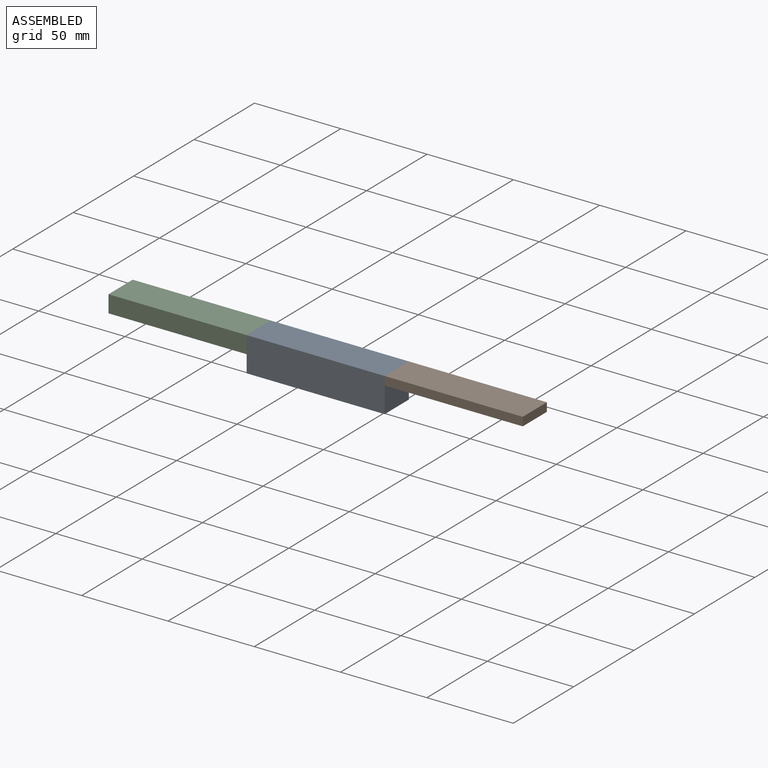
[diagram: assembled view]
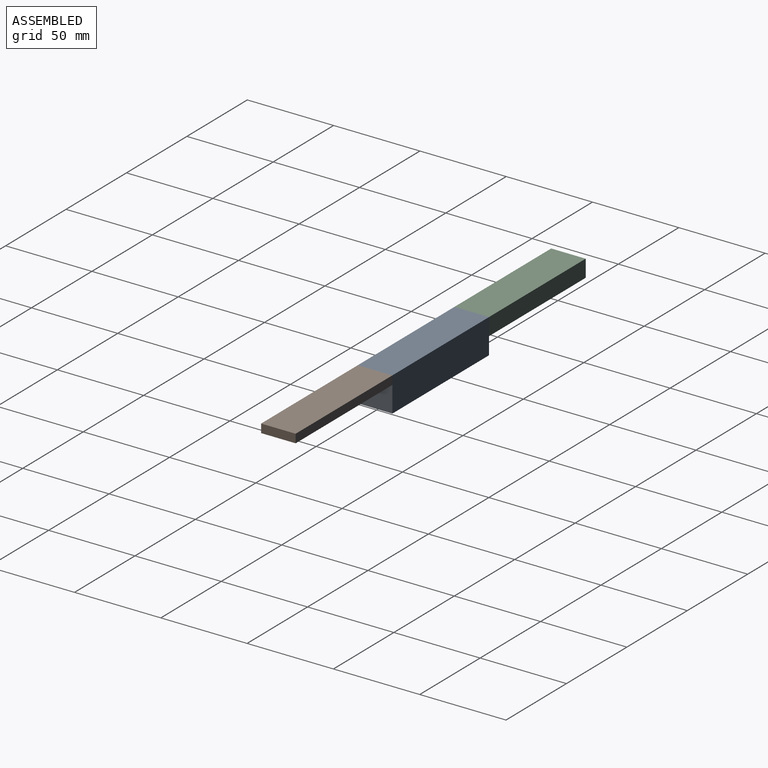
[diagram: assembled view, second angle]
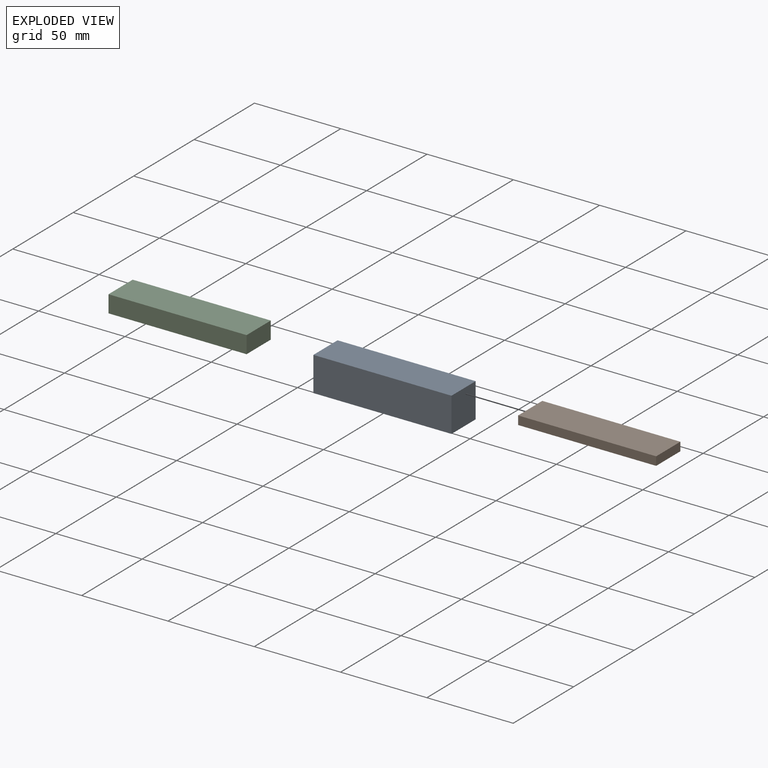
[diagram: exploded view]
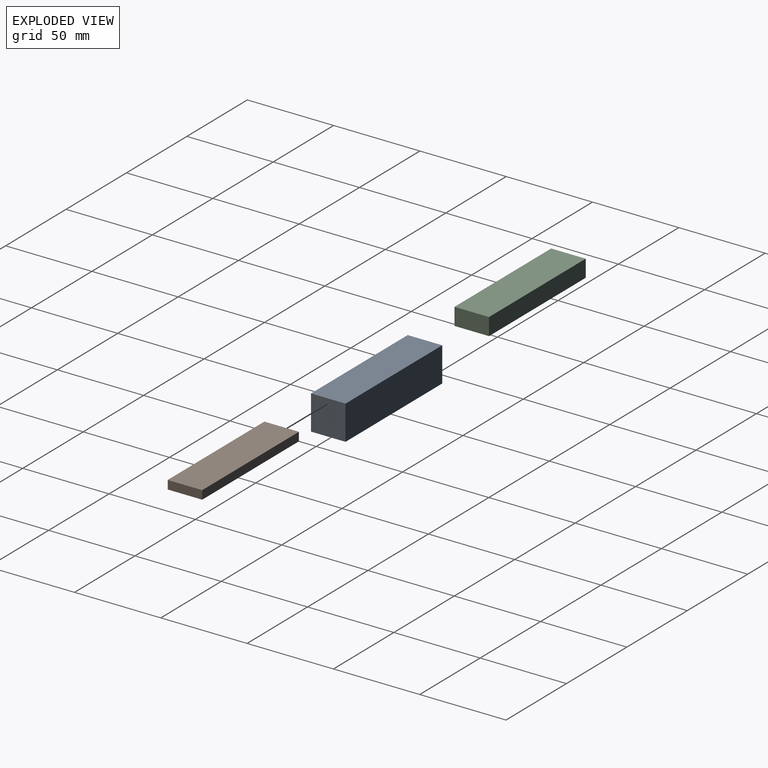
[diagram: exploded view, second angle]
ASSEMBLY  parts=3 mates=6
PART A: 6 faces, bbox 80x20x20 mm
  f0: plane 20x20mm, normal (-1,0,0), area 400mm2, adj f1,f3,f4,f5
  f1: plane 80x20mm, normal (0,-1,0), area 1600mm2, adj f0,f2,f4,f5
  f2: plane 20x20mm, normal (1,0,0), area 400mm2, adj f1,f3,f4,f5
  f3: plane 80x20mm, normal (0,1,0), area 1600mm2, adj f0,f2,f4,f5
  f4: plane 80x20mm, normal (0,0,1), area 1600mm2, adj f0,f1,f2,f3
  f5: plane 80x20mm, normal (0,0,-1), area 1600mm2, adj f0,f1,f2,f3
PART B: 6 faces, bbox 80x20x5 mm
  f0: plane 20x5mm, normal (-1,0,0), area 100mm2, adj f1,f3,f4,f5
  f1: plane 80x5mm, normal (0,-1,0), area 400mm2, adj f0,f2,f4,f5
  f2: plane 20x5mm, normal (1,0,0), area 100mm2, adj f1,f3,f4,f5
  f3: plane 80x5mm, normal (0,1,0), area 400mm2, adj f0,f2,f4,f5
  f4: plane 80x20mm, normal (0,0,1), area 1600mm2, adj f0,f1,f2,f3
  f5: plane 80x20mm, normal (0,0,-1), area 1600mm2, adj f0,f1,f2,f3
PART C: 6 faces, bbox 80x20x10 mm
  f0: plane 20x10mm, normal (-1,0,0), area 200mm2, adj f1,f3,f4,f5
  f1: plane 80x10mm, normal (0,-1,0), area 800mm2, adj f0,f2,f4,f5
  f2: plane 20x10mm, normal (1,0,0), area 200mm2, adj f1,f3,f4,f5
  f3: plane 80x10mm, normal (0,1,0), area 800mm2, adj f0,f2,f4,f5
  f4: plane 80x20mm, normal (0,0,1), area 1600mm2, adj f0,f1,f2,f3
  f5: plane 80x20mm, normal (0,0,-1), area 1600mm2, adj f0,f1,f2,f3
PLACE A t=(-88.06,15.24,-9.18)mm
PLACE B t=(-4.03,4.05,5.82)mm fixed
PLACE C t=(-166.54,16.45,0.82)mm
MATE planar A.f2 <-> B.f0  axis (1,0,0) through (-44.54,2.92,10.82)mm
MATE planar C.f2 <-> A.f0  axis (1,0,0) through (-124.54,2.92,5.82)mm
MATE planar C.f4 <-> A.f4  axis (0,0,1) through (-204.54,2.92,10.82)mm
MATE planar A.f1 <-> B.f1  axis (0,-1,0) through (-84.54,-7.08,0.82)mm
MATE planar C.f1 <-> A.f1  axis (0,-1,0) through (-164.54,-7.08,5.82)mm
MATE planar B.f4 <-> A.f4  axis (0,0,1) through (-4.54,2.92,10.82)mm
